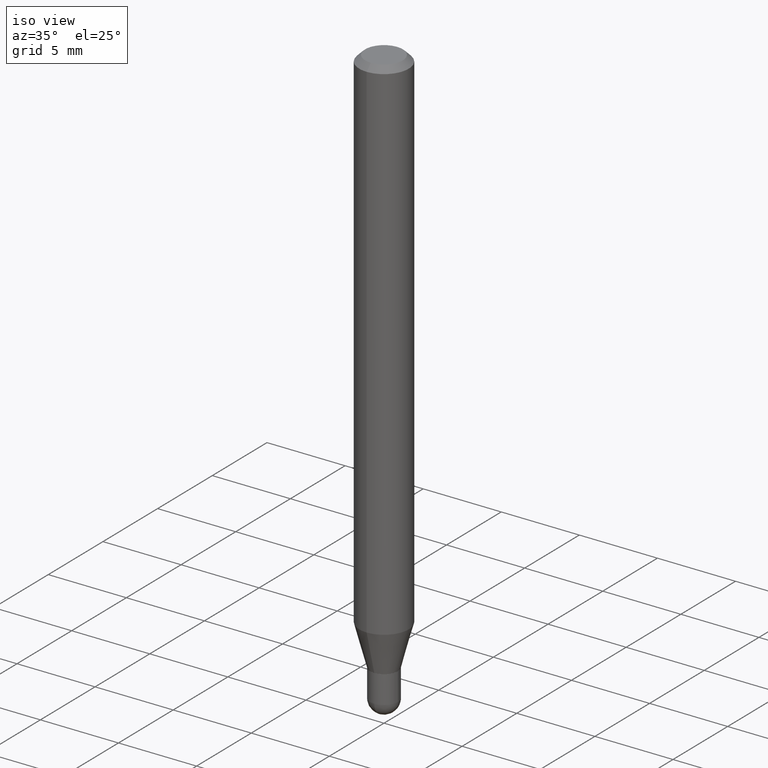
[diagram: clean part render]
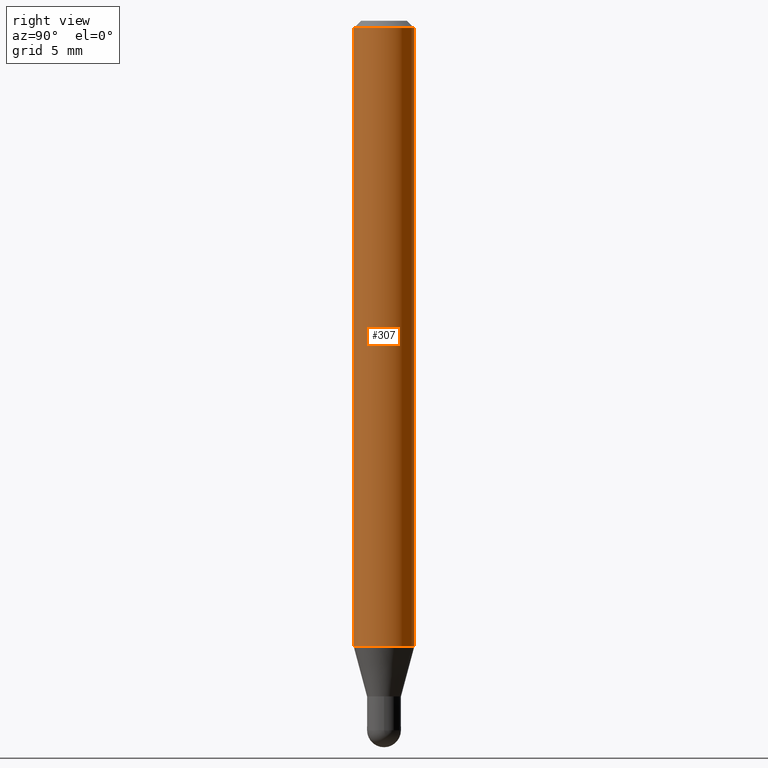
[diagram: tour spotlight — one face highlighted and labeled with its STEP entity id]
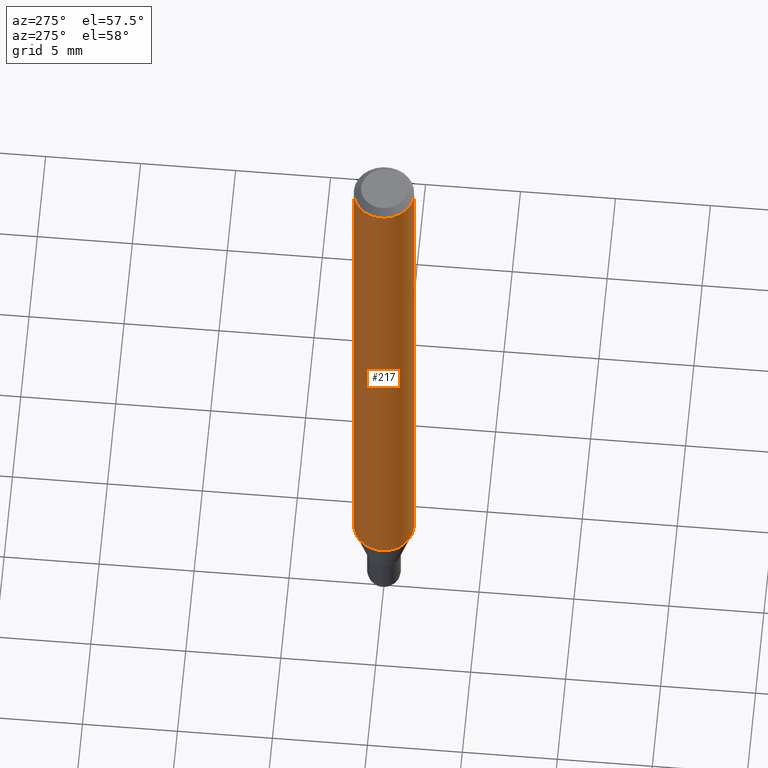
[diagram: tour spotlight — one face highlighted and labeled with its STEP entity id]
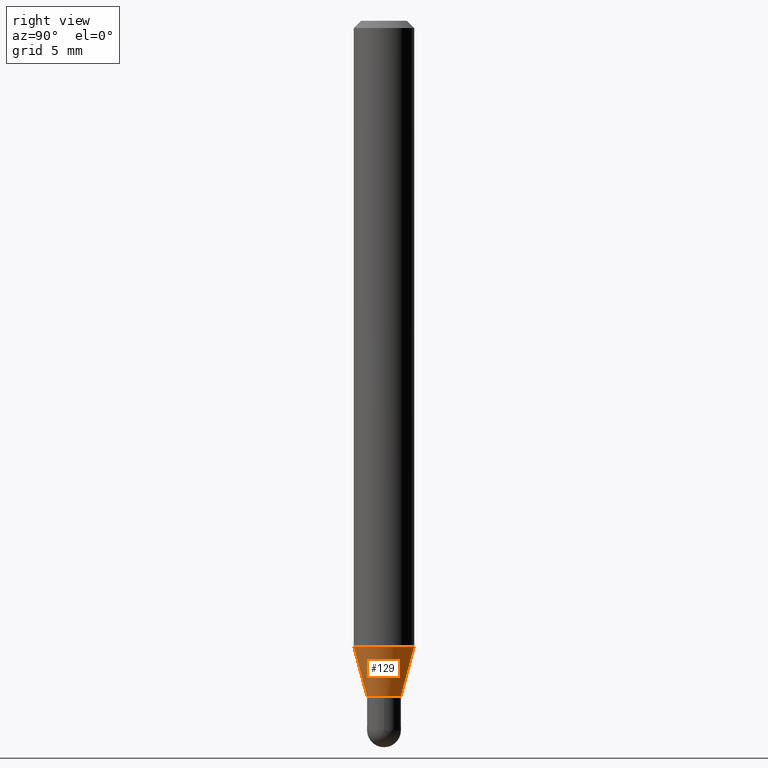
[diagram: tour spotlight — one face highlighted and labeled with its STEP entity id]
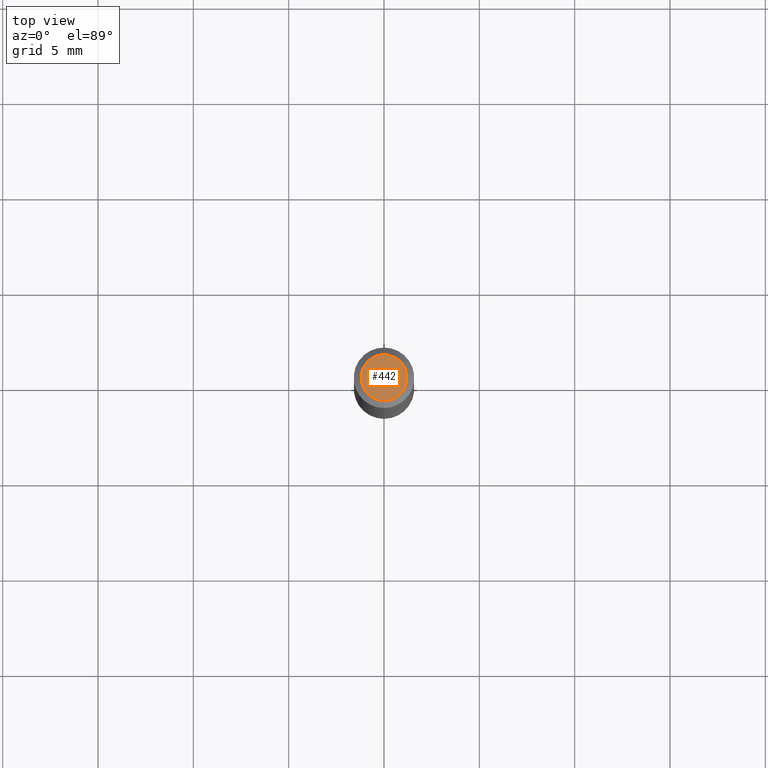
[diagram: tour spotlight — one face highlighted and labeled with its STEP entity id]
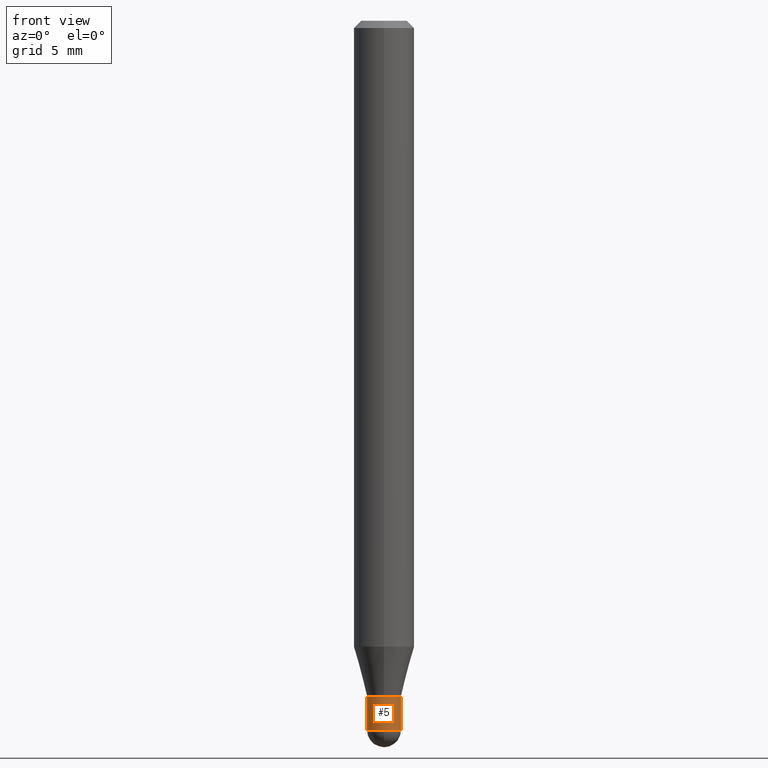
[diagram: tour spotlight — one face highlighted and labeled with its STEP entity id]
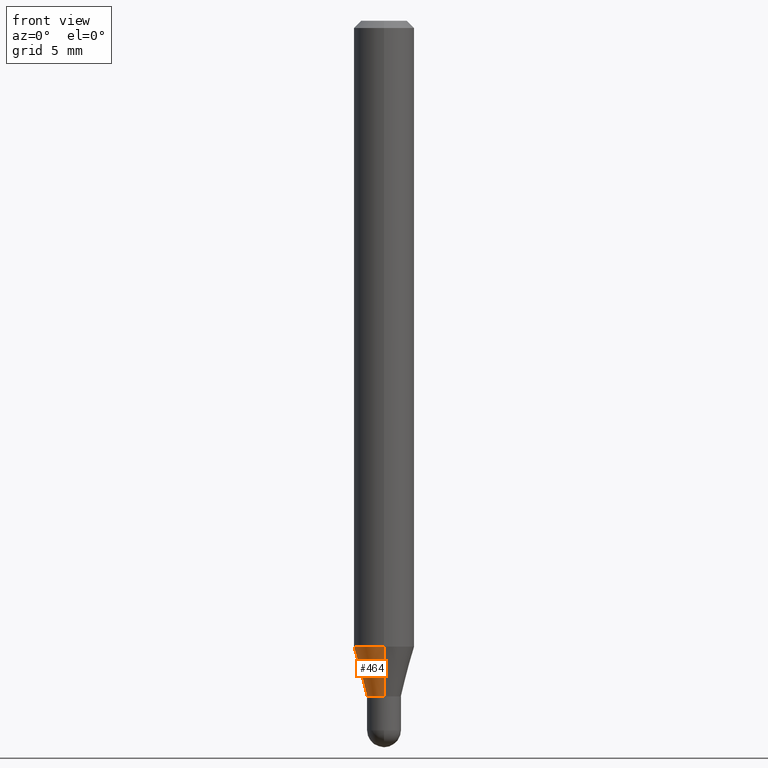
[diagram: tour spotlight — one face highlighted and labeled with its STEP entity id]
A machine part: a face-by-face anatomy tour. The part has 17 B-rep faces; the first image is the clean iso view, then the 6 largest visible faces are spotlighted one at a time (largest first), each with its STEP entity span.

Face 1 — right view, entity #307. In plain terms, the highlighted cylindrical surface (edge-blend (fillet) strip) has radius 1.5875 mm, axis along (-0, 0, 1).
Definition (entity closure, byte-faithful):
#7 = EDGE_CURVE ( 'NONE', #356, #306, #235, .T. ) ;
#18 = ORIENTED_EDGE ( 'NONE', *, *, #346, .F. ) ;
#39 = CARTESIAN_POINT ( 'NONE',  ( 0.000000000000000000, 0.000000000000000000, 0.000000000000000000 ) ) ;
#45 = DIRECTION ( 'NONE',  ( -6.982962677686265922E-15, -1.000000000000000000, 3.483106191921935554E-15 ) ) ;
#89 = DIRECTION ( 'NONE',  ( -2.445400408763161075E-29, 3.491579287844353916E-15, 1.000000000000000000 ) ) ;
#118 = DIRECTION ( 'NONE',  ( -2.445400408763160794E-29, 3.491579287844353916E-15, 1.000000000000000000 ) ) ;
#121 = CARTESIAN_POINT ( 'NONE',  ( 4.440892098500938748E-16, 0.06249999999999544809, -1.292368602791860166 ) ) ;
#124 = CARTESIAN_POINT ( 'NONE',  ( 3.160358709539889409E-29, -4.512407445768404913E-15, -1.292368602791859944 ) ) ;
#139 = CIRCLE ( 'NONE', #410, 0.06250000000000000000 ) ;
#149 = AXIS2_PLACEMENT_3D ( 'NONE', #39, #331, #439 ) ;
#154 = LINE ( 'NONE', #466, #322 ) ;
#176 = DIRECTION ( 'NONE',  ( -2.445400408763161075E-29, 3.491579287844353916E-15, 1.000000000000000000 ) ) ;
#184 = EDGE_CURVE ( 'NONE', #304, #212, #154, .T. ) ;
#198 = ORIENTED_EDGE ( 'NONE', *, *, #184, .T. ) ;
#207 = CARTESIAN_POINT ( 'NONE',  ( -4.364351673553602629E-16, -0.06250000000000455191, -1.292368602791859722 ) ) ;
#212 = VERTEX_POINT ( 'NONE', #337 ) ;
#220 = CIRCLE ( 'NONE', #300, 0.06250000000000000000 ) ;
#235 = LINE ( 'NONE', #506, #353 ) ;
#241 = DIRECTION ( 'NONE',  ( -6.982962677686265922E-15, -1.000000000000000000, 4.370956789862821150E-15 ) ) ;
#254 = CARTESIAN_POINT ( 'NONE',  ( -4.364351673553912750E-16, -0.06250000000000005551, -0.01499999999999984852 ) ) ;
#285 = ORIENTED_EDGE ( 'NONE', *, *, #7, .F. ) ;
#298 = EDGE_LOOP ( 'NONE', ( #350, #198, #18, #285 ) ) ;
#300 = AXIS2_PLACEMENT_3D ( 'NONE', #431, #176, #45 ) ;
#304 = VERTEX_POINT ( 'NONE', #121 ) ;
#306 = VERTEX_POINT ( 'NONE', #254 ) ;
#307 = ADVANCED_FACE ( 'NONE', ( #478 ), #468, .T. ) ;
#316 = DIRECTION ( 'NONE',  ( -2.445400408763160794E-29, 3.491579287844353916E-15, 1.000000000000000000 ) ) ;
#322 = VECTOR ( 'NONE', #118, 39.37007874015748143 ) ;
#331 = DIRECTION ( 'NONE',  ( -2.445400408763161075E-29, 3.491579287844353916E-15, 1.000000000000000000 ) ) ;
#337 = CARTESIAN_POINT ( 'NONE',  ( 4.440892098500943678E-16, 0.06249999999999995143, -0.01500000000000028394 ) ) ;
#346 = EDGE_CURVE ( 'NONE', #306, #212, #220, .T. ) ;
#350 = ORIENTED_EDGE ( 'NONE', *, *, #363, .T. ) ;
#353 = VECTOR ( 'NONE', #316, 39.37007874015748143 ) ;
#356 = VERTEX_POINT ( 'NONE', #207 ) ;
#363 = EDGE_CURVE ( 'NONE', #356, #304, #139, .T. ) ;
#410 = AXIS2_PLACEMENT_3D ( 'NONE', #124, #89, #241 ) ;
#431 = CARTESIAN_POINT ( 'NONE',  ( 3.668100613144757937E-31, -5.237368931766553628E-17, -0.01500000000000006710 ) ) ;
#439 = DIRECTION ( 'NONE',  ( -6.982962677686265922E-15, -1.000000000000000000, 3.491579287844353916E-15 ) ) ;
#466 = CARTESIAN_POINT ( 'NONE',  ( 4.440892098500625669E-16, 0.06250000000000000000, -2.182237054902721198E-16 ) ) ;
#468 = CYLINDRICAL_SURFACE ( 'NONE', #149, 0.06250000000000000000 ) ;
#478 = FACE_OUTER_BOUND ( 'NONE', #298, .T. ) ;
#506 = CARTESIAN_POINT ( 'NONE',  ( -4.364351673553916201E-16, -0.06250000000000000000, 2.182237054902721198E-16 ) ) ;

Face 2 — auxiliary view, entity #217. In plain terms, the highlighted cylindrical surface (edge-blend (fillet) strip) has radius 1.5875 mm, axis along (-0, 0, 1).
Definition (entity closure, byte-faithful):
#4 = DIRECTION ( 'NONE',  ( -2.445400408763161075E-29, 3.491579287844353916E-15, 1.000000000000000000 ) ) ;
#7 = EDGE_CURVE ( 'NONE', #356, #306, #235, .T. ) ;
#17 = DIRECTION ( 'NONE',  ( -2.445400408763161075E-29, 3.491579287844353916E-15, 1.000000000000000000 ) ) ;
#22 = EDGE_CURVE ( 'NONE', #304, #356, #132, .T. ) ;
#34 = ORIENTED_EDGE ( 'NONE', *, *, #184, .F. ) ;
#44 = DIRECTION ( 'NONE',  ( -6.982962677686265922E-15, -1.000000000000000000, 3.483106191921935554E-15 ) ) ;
#67 = ORIENTED_EDGE ( 'NONE', *, *, #113, .F. ) ;
#94 = CARTESIAN_POINT ( 'NONE',  ( 0.000000000000000000, 0.000000000000000000, 0.000000000000000000 ) ) ;
#113 = EDGE_CURVE ( 'NONE', #212, #306, #210, .T. ) ;
#118 = DIRECTION ( 'NONE',  ( -2.445400408763160794E-29, 3.491579287844353916E-15, 1.000000000000000000 ) ) ;
#121 = CARTESIAN_POINT ( 'NONE',  ( 4.440892098500938748E-16, 0.06249999999999544809, -1.292368602791860166 ) ) ;
#126 = CARTESIAN_POINT ( 'NONE',  ( 3.160358709539889409E-29, -4.512407445768404913E-15, -1.292368602791859944 ) ) ;
#132 = CIRCLE ( 'NONE', #138, 0.06250000000000000000 ) ;
#138 = AXIS2_PLACEMENT_3D ( 'NONE', #126, #288, #204 ) ;
#154 = LINE ( 'NONE', #466, #322 ) ;
#184 = EDGE_CURVE ( 'NONE', #304, #212, #154, .T. ) ;
#199 = EDGE_LOOP ( 'NONE', ( #34, #490, #302, #67 ) ) ;
#204 = DIRECTION ( 'NONE',  ( -6.982962677686265922E-15, -1.000000000000000000, 4.370956789862821150E-15 ) ) ;
#207 = CARTESIAN_POINT ( 'NONE',  ( -4.364351673553602629E-16, -0.06250000000000455191, -1.292368602791859722 ) ) ;
#210 = CIRCLE ( 'NONE', #491, 0.06250000000000000000 ) ;
#212 = VERTEX_POINT ( 'NONE', #337 ) ;
#217 = ADVANCED_FACE ( 'NONE', ( #287 ), #395, .T. ) ;
#223 = CARTESIAN_POINT ( 'NONE',  ( 3.668100613144757937E-31, -5.237368931766553628E-17, -0.01500000000000006710 ) ) ;
#235 = LINE ( 'NONE', #506, #353 ) ;
#254 = CARTESIAN_POINT ( 'NONE',  ( -4.364351673553912750E-16, -0.06250000000000005551, -0.01499999999999984852 ) ) ;
#283 = AXIS2_PLACEMENT_3D ( 'NONE', #94, #4, #400 ) ;
#287 = FACE_OUTER_BOUND ( 'NONE', #199, .T. ) ;
#288 = DIRECTION ( 'NONE',  ( -2.445400408763161075E-29, 3.491579287844353916E-15, 1.000000000000000000 ) ) ;
#302 = ORIENTED_EDGE ( 'NONE', *, *, #7, .T. ) ;
#304 = VERTEX_POINT ( 'NONE', #121 ) ;
#306 = VERTEX_POINT ( 'NONE', #254 ) ;
#316 = DIRECTION ( 'NONE',  ( -2.445400408763160794E-29, 3.491579287844353916E-15, 1.000000000000000000 ) ) ;
#322 = VECTOR ( 'NONE', #118, 39.37007874015748143 ) ;
#337 = CARTESIAN_POINT ( 'NONE',  ( 4.440892098500943678E-16, 0.06249999999999995143, -0.01500000000000028394 ) ) ;
#353 = VECTOR ( 'NONE', #316, 39.37007874015748143 ) ;
#356 = VERTEX_POINT ( 'NONE', #207 ) ;
#395 = CYLINDRICAL_SURFACE ( 'NONE', #283, 0.06250000000000000000 ) ;
#400 = DIRECTION ( 'NONE',  ( -6.982962677686265922E-15, -1.000000000000000000, 3.491579287844353916E-15 ) ) ;
#466 = CARTESIAN_POINT ( 'NONE',  ( 4.440892098500625669E-16, 0.06250000000000000000, -2.182237054902721198E-16 ) ) ;
#490 = ORIENTED_EDGE ( 'NONE', *, *, #22, .T. ) ;
#491 = AXIS2_PLACEMENT_3D ( 'NONE', #223, #17, #44 ) ;
#506 = CARTESIAN_POINT ( 'NONE',  ( -4.364351673553916201E-16, -0.06250000000000000000, 2.182237054902721198E-16 ) ) ;

Face 3 — right view, entity #129. In plain terms, the highlighted conical surface has half-angle 15 deg.
Definition (entity closure, byte-faithful):
#12 = DIRECTION ( 'NONE',  ( -6.982962677686266711E-15, -1.000000000000000000, 0.000000000000000000 ) ) ;
#27 = CARTESIAN_POINT ( 'NONE',  ( 3.411333570224609450E-29, -4.870753106542874617E-15, -1.395000000000000018 ) ) ;
#28 = CARTESIAN_POINT ( 'NONE',  ( 3.411333570224609450E-29, -4.870753106542874617E-15, -1.395000000000000018 ) ) ;
#43 = EDGE_CURVE ( 'NONE', #150, #304, #245, .T. ) ;
#51 = CIRCLE ( 'NONE', #201, 0.03500000000000019762 ) ;
#59 = DIRECTION ( 'NONE',  ( -1.807323732225378654E-15, -0.2588190451025251249, 0.9659258262890670910 ) ) ;
#61 = ORIENTED_EDGE ( 'NONE', *, *, #417, .F. ) ;
#64 = CARTESIAN_POINT ( 'NONE',  ( -2.444036937189865873E-16, -0.03500000000000506872, -1.395000000000000018 ) ) ;
#76 = DIRECTION ( 'NONE',  ( -2.445400408763161075E-29, 3.491579287844353916E-15, 1.000000000000000000 ) ) ;
#81 = EDGE_CURVE ( 'NONE', #109, #150, #51, .T. ) ;
#89 = DIRECTION ( 'NONE',  ( -2.445400408763161075E-29, 3.491579287844353916E-15, 1.000000000000000000 ) ) ;
#102 = ORIENTED_EDGE ( 'NONE', *, *, #43, .T. ) ;
#105 = VECTOR ( 'NONE', #59, 39.37007874015748854 ) ;
#109 = VERTEX_POINT ( 'NONE', #64 ) ;
#116 = CARTESIAN_POINT ( 'NONE',  ( 3.463895836830824283E-16, 0.03499999999999532652, -1.395000000000000018 ) ) ;
#121 = CARTESIAN_POINT ( 'NONE',  ( 4.440892098500938748E-16, 0.06249999999999544809, -1.292368602791860166 ) ) ;
#124 = CARTESIAN_POINT ( 'NONE',  ( 3.160358709539889409E-29, -4.512407445768404913E-15, -1.292368602791859944 ) ) ;
#129 = ADVANCED_FACE ( 'NONE', ( #289 ), #273, .T. ) ;
#139 = CIRCLE ( 'NONE', #410, 0.06250000000000000000 ) ;
#150 = VERTEX_POINT ( 'NONE', #116 ) ;
#201 = AXIS2_PLACEMENT_3D ( 'NONE', #28, #76, #12 ) ;
#207 = CARTESIAN_POINT ( 'NONE',  ( -4.364351673553602629E-16, -0.06250000000000455191, -1.292368602791859722 ) ) ;
#224 = ORIENTED_EDGE ( 'NONE', *, *, #81, .T. ) ;
#232 = DIRECTION ( 'NONE',  ( 1.839019923739649619E-15, 0.2588190451025318972, 0.9659258262890653146 ) ) ;
#241 = DIRECTION ( 'NONE',  ( -6.982962677686265922E-15, -1.000000000000000000, 4.370956789862821150E-15 ) ) ;
#245 = LINE ( 'NONE', #279, #263 ) ;
#258 = LINE ( 'NONE', #301, #105 ) ;
#263 = VECTOR ( 'NONE', #232, 39.37007874015748143 ) ;
#273 = CONICAL_SURFACE ( 'NONE', #429, 0.03500000000000019762, 0.2617993877991574569 ) ;
#279 = CARTESIAN_POINT ( 'NONE',  ( 2.486899575160705875E-16, 0.03499999999999532652, -1.395000000000000018 ) ) ;
#289 = FACE_OUTER_BOUND ( 'NONE', #326, .T. ) ;
#301 = CARTESIAN_POINT ( 'NONE',  ( -2.444036937189865873E-16, -0.03500000000000506872, -1.395000000000000018 ) ) ;
#304 = VERTEX_POINT ( 'NONE', #121 ) ;
#326 = EDGE_LOOP ( 'NONE', ( #224, #102, #459, #61 ) ) ;
#356 = VERTEX_POINT ( 'NONE', #207 ) ;
#363 = EDGE_CURVE ( 'NONE', #356, #304, #139, .T. ) ;
#410 = AXIS2_PLACEMENT_3D ( 'NONE', #124, #89, #241 ) ;
#417 = EDGE_CURVE ( 'NONE', #109, #356, #258, .T. ) ;
#429 = AXIS2_PLACEMENT_3D ( 'NONE', #27, #450, #463 ) ;
#450 = DIRECTION ( 'NONE',  ( -2.445400408763161075E-29, 3.491579287844353916E-15, 1.000000000000000000 ) ) ;
#459 = ORIENTED_EDGE ( 'NONE', *, *, #363, .F. ) ;
#463 = DIRECTION ( 'NONE',  ( -6.982962677686266711E-15, -1.000000000000000000, 0.000000000000000000 ) ) ;

Face 4 — top view, entity #442. In plain terms, the highlighted planar face has unit normal (0, -0, -1).
Definition (entity closure, byte-faithful):
#41 = AXIS2_PLACEMENT_3D ( 'NONE', #503, #162, #465 ) ;
#69 = EDGE_CURVE ( 'NONE', #146, #226, #236, .T. ) ;
#92 = CARTESIAN_POINT ( 'NONE',  ( 1.601629217107517250E-45, -2.286830157228695507E-31, -6.549558147483881660E-17 ) ) ;
#100 = FACE_OUTER_BOUND ( 'NONE', #372, .T. ) ;
#101 = DIRECTION ( 'NONE',  ( 2.445400408763160794E-29, -3.491579287844353916E-15, -1.000000000000000000 ) ) ;
#146 = VERTEX_POINT ( 'NONE', #387 ) ;
#162 = DIRECTION ( 'NONE',  ( -2.445400408763161075E-29, 3.491579287844353916E-15, 1.000000000000000000 ) ) ;
#182 = DIRECTION ( 'NONE',  ( -2.445400408763161075E-29, 3.491579287844353916E-15, 1.000000000000000000 ) ) ;
#214 = CARTESIAN_POINT ( 'NONE',  ( -3.773273898774340269E-16, -0.04749999999999999362, 1.003544346977680073E-16 ) ) ;
#226 = VERTEX_POINT ( 'NONE', #214 ) ;
#236 = CIRCLE ( 'NONE', #41, 0.04749999999999999362 ) ;
#293 = AXIS2_PLACEMENT_3D ( 'NONE', #444, #101, #409 ) ;
#336 = PLANE ( 'NONE',  #293 ) ;
#359 = ORIENTED_EDGE ( 'NONE', *, *, #69, .T. ) ;
#372 = EDGE_LOOP ( 'NONE', ( #359, #414 ) ) ;
#382 = EDGE_CURVE ( 'NONE', #226, #146, #486, .T. ) ;
#387 = CARTESIAN_POINT ( 'NONE',  ( 3.840629472727447874E-16, 0.04749999999999999362, -2.313455976474456528E-16 ) ) ;
#409 = DIRECTION ( 'NONE',  ( 6.982962677686265922E-15, 1.000000000000000000, -3.491579287844353916E-15 ) ) ;
#414 = ORIENTED_EDGE ( 'NONE', *, *, #382, .T. ) ;
#430 = AXIS2_PLACEMENT_3D ( 'NONE', #92, #182, #447 ) ;
#442 = ADVANCED_FACE ( 'NONE', ( #100 ), #336, .F. ) ;
#444 = CARTESIAN_POINT ( 'NONE',  ( 3.316907271900976096E-16, 0.04749999999999999362, -1.985978069100262013E-16 ) ) ;
#447 = DIRECTION ( 'NONE',  ( -6.982962677686266711E-15, -1.000000000000000000, 3.491579287844354705E-15 ) ) ;
#465 = DIRECTION ( 'NONE',  ( -6.982962677686266711E-15, -1.000000000000000000, 3.491579287844354705E-15 ) ) ;
#486 = CIRCLE ( 'NONE', #430, 0.04749999999999999362 ) ;
#503 = CARTESIAN_POINT ( 'NONE',  ( 1.601629217107517250E-45, -2.286830157228695507E-31, -6.549558147483881660E-17 ) ) ;

Face 5 — front view, entity #5. In plain terms, the highlighted cylindrical surface (edge-blend (fillet) strip) has radius 0.889 mm, axis along (-0, 0, 1).
Definition (entity closure, byte-faithful):
#5 = ADVANCED_FACE ( 'NONE', ( #159 ), #467, .T. ) ;
#11 = CIRCLE ( 'NONE', #445, 0.03500000000000000333 ) ;
#24 = DIRECTION ( 'NONE',  ( -2.445468806185136597E-29, 3.491481338843145583E-15, 1.000000000000000000 ) ) ;
#42 = VERTEX_POINT ( 'NONE', #85 ) ;
#57 = VERTEX_POINT ( 'NONE', #130 ) ;
#70 = ORIENTED_EDGE ( 'NONE', *, *, #426, .T. ) ;
#80 = DIRECTION ( 'NONE',  ( -2.445468806185136597E-29, 3.491481338843145583E-15, 1.000000000000000000 ) ) ;
#82 = DIRECTION ( 'NONE',  ( 1.000000000000000000, -6.982962677686265922E-15, 4.876176775795936353E-29 ) ) ;
#85 = CARTESIAN_POINT ( 'NONE',  ( -0.03500000000000000333, -4.744128357029662925E-15, -1.395000000000000018 ) ) ;
#90 = CARTESIAN_POINT ( 'NONE',  ( -0.03500000000000000333, 2.486899575160350887E-16, -1.721627281589217108E-30 ) ) ;
#98 = CIRCLE ( 'NONE', #112, 0.03500000000000000333 ) ;
#104 = DIRECTION ( 'NONE',  ( -2.445468806185136877E-29, 3.491481338843145188E-15, 1.000000000000000000 ) ) ;
#108 = ORIENTED_EDGE ( 'NONE', *, *, #408, .T. ) ;
#112 = AXIS2_PLACEMENT_3D ( 'NONE', #115, #24, #200 ) ;
#115 = CARTESIAN_POINT ( 'NONE',  ( 3.582611801061224486E-29, -5.115020161405207405E-15, -1.464999999999999858 ) ) ;
#117 = EDGE_LOOP ( 'NONE', ( #240, #267, #70, #108, #384 ) ) ;
#125 = EDGE_CURVE ( 'NONE', #57, #42, #479, .T. ) ;
#130 = CARTESIAN_POINT ( 'NONE',  ( -0.03500000000000000333, -4.744128357029662925E-15, -1.464999999999999858 ) ) ;
#140 = CARTESIAN_POINT ( 'NONE',  ( 0.03500000000000000333, -2.444036937190193250E-16, 1.706661871528577808E-30 ) ) ;
#159 = FACE_OUTER_BOUND ( 'NONE', #117, .T. ) ;
#171 = CARTESIAN_POINT ( 'NONE',  ( 0.000000000000000000, 0.000000000000000000, 0.000000000000000000 ) ) ;
#185 = DIRECTION ( 'NONE',  ( 1.000000000000000000, -6.982962677686276966E-15, 0.000000000000000000 ) ) ;
#195 = VECTOR ( 'NONE', #253, 39.37007874015748143 ) ;
#200 = DIRECTION ( 'NONE',  ( 1.000000000000000000, -6.982962677686276966E-15, 0.000000000000000000 ) ) ;
#206 = VERTEX_POINT ( 'NONE', #469 ) ;
#240 = ORIENTED_EDGE ( 'NONE', *, *, #125, .F. ) ;
#246 = DIRECTION ( 'NONE',  ( 1.000000000000000000, -6.982962677686276966E-15, 0.000000000000000000 ) ) ;
#249 = CIRCLE ( 'NONE', #376, 0.03500000000000000333 ) ;
#253 = DIRECTION ( 'NONE',  ( -2.445468806185136877E-29, 3.491481338843145188E-15, 1.000000000000000000 ) ) ;
#266 = DIRECTION ( 'NONE',  ( -2.445468806185136597E-29, 3.491481338843145583E-15, 1.000000000000000000 ) ) ;
#267 = ORIENTED_EDGE ( 'NONE', *, *, #512, .T. ) ;
#272 = VERTEX_POINT ( 'NONE', #501 ) ;
#319 = DIRECTION ( 'NONE',  ( -2.445468806185136597E-29, 3.491481338843145583E-15, 1.000000000000000000 ) ) ;
#323 = VECTOR ( 'NONE', #104, 39.37007874015748143 ) ;
#328 = EDGE_CURVE ( 'NONE', #42, #206, #249, .T. ) ;
#340 = AXIS2_PLACEMENT_3D ( 'NONE', #171, #319, #82 ) ;
#342 = CARTESIAN_POINT ( 'NONE',  ( 3.582611801061224486E-29, -5.115020161405207405E-15, -1.464999999999999858 ) ) ;
#364 = CARTESIAN_POINT ( 'NONE',  ( 3.411428984628265351E-29, -4.870616467686188228E-15, -1.395000000000000018 ) ) ;
#373 = CARTESIAN_POINT ( 'NONE',  ( -2.444036937189835304E-16, -0.03500000000000512423, -1.464999999999999858 ) ) ;
#376 = AXIS2_PLACEMENT_3D ( 'NONE', #364, #80, #246 ) ;
#384 = ORIENTED_EDGE ( 'NONE', *, *, #328, .F. ) ;
#408 = EDGE_CURVE ( 'NONE', #272, #206, #441, .T. ) ;
#425 = VERTEX_POINT ( 'NONE', #373 ) ;
#426 = EDGE_CURVE ( 'NONE', #425, #272, #11, .T. ) ;
#441 = LINE ( 'NONE', #140, #323 ) ;
#445 = AXIS2_PLACEMENT_3D ( 'NONE', #342, #266, #185 ) ;
#467 = CYLINDRICAL_SURFACE ( 'NONE', #340, 0.03500000000000000333 ) ;
#469 = CARTESIAN_POINT ( 'NONE',  ( 0.03500000000000000333, -5.115020161405208194E-15, -1.395000000000000018 ) ) ;
#479 = LINE ( 'NONE', #90, #195 ) ;
#501 = CARTESIAN_POINT ( 'NONE',  ( 0.03500000000000000333, -5.237222008264717388E-15, -1.464999999999999858 ) ) ;
#512 = EDGE_CURVE ( 'NONE', #57, #425, #98, .T. ) ;

Face 6 — front view, entity #464. In plain terms, the highlighted conical surface has half-angle 15 deg.
Definition (entity closure, byte-faithful):
#9 = DIRECTION ( 'NONE',  ( -6.982962677686266711E-15, -1.000000000000000000, 0.000000000000000000 ) ) ;
#22 = EDGE_CURVE ( 'NONE', #304, #356, #132, .T. ) ;
#43 = EDGE_CURVE ( 'NONE', #150, #304, #245, .T. ) ;
#59 = DIRECTION ( 'NONE',  ( -1.807323732225378654E-15, -0.2588190451025251249, 0.9659258262890670910 ) ) ;
#60 = AXIS2_PLACEMENT_3D ( 'NONE', #371, #188, #9 ) ;
#64 = CARTESIAN_POINT ( 'NONE',  ( -2.444036937189865873E-16, -0.03500000000000506872, -1.395000000000000018 ) ) ;
#105 = VECTOR ( 'NONE', #59, 39.37007874015748854 ) ;
#109 = VERTEX_POINT ( 'NONE', #64 ) ;
#116 = CARTESIAN_POINT ( 'NONE',  ( 3.463895836830824283E-16, 0.03499999999999532652, -1.395000000000000018 ) ) ;
#121 = CARTESIAN_POINT ( 'NONE',  ( 4.440892098500938748E-16, 0.06249999999999544809, -1.292368602791860166 ) ) ;
#126 = CARTESIAN_POINT ( 'NONE',  ( 3.160358709539889409E-29, -4.512407445768404913E-15, -1.292368602791859944 ) ) ;
#127 = DIRECTION ( 'NONE',  ( -2.445400408763161075E-29, 3.491579287844353916E-15, 1.000000000000000000 ) ) ;
#132 = CIRCLE ( 'NONE', #138, 0.06250000000000000000 ) ;
#138 = AXIS2_PLACEMENT_3D ( 'NONE', #126, #288, #204 ) ;
#150 = VERTEX_POINT ( 'NONE', #116 ) ;
#167 = CONICAL_SURFACE ( 'NONE', #60, 0.03500000000000019762, 0.2617993877991574569 ) ;
#188 = DIRECTION ( 'NONE',  ( -2.445400408763161075E-29, 3.491579287844353916E-15, 1.000000000000000000 ) ) ;
#189 = ORIENTED_EDGE ( 'NONE', *, *, #417, .T. ) ;
#196 = EDGE_LOOP ( 'NONE', ( #374, #381, #189, #419 ) ) ;
#204 = DIRECTION ( 'NONE',  ( -6.982962677686265922E-15, -1.000000000000000000, 4.370956789862821150E-15 ) ) ;
#207 = CARTESIAN_POINT ( 'NONE',  ( -4.364351673553602629E-16, -0.06250000000000455191, -1.292368602791859722 ) ) ;
#232 = DIRECTION ( 'NONE',  ( 1.839019923739649619E-15, 0.2588190451025318972, 0.9659258262890653146 ) ) ;
#245 = LINE ( 'NONE', #279, #263 ) ;
#258 = LINE ( 'NONE', #301, #105 ) ;
#263 = VECTOR ( 'NONE', #232, 39.37007874015748143 ) ;
#279 = CARTESIAN_POINT ( 'NONE',  ( 2.486899575160705875E-16, 0.03499999999999532652, -1.395000000000000018 ) ) ;
#288 = DIRECTION ( 'NONE',  ( -2.445400408763161075E-29, 3.491579287844353916E-15, 1.000000000000000000 ) ) ;
#291 = DIRECTION ( 'NONE',  ( -6.982962677686266711E-15, -1.000000000000000000, 0.000000000000000000 ) ) ;
#301 = CARTESIAN_POINT ( 'NONE',  ( -2.444036937189865873E-16, -0.03500000000000506872, -1.395000000000000018 ) ) ;
#304 = VERTEX_POINT ( 'NONE', #121 ) ;
#344 = EDGE_CURVE ( 'NONE', #150, #109, #454, .T. ) ;
#356 = VERTEX_POINT ( 'NONE', #207 ) ;
#371 = CARTESIAN_POINT ( 'NONE',  ( 3.411333570224609450E-29, -4.870753106542874617E-15, -1.395000000000000018 ) ) ;
#374 = ORIENTED_EDGE ( 'NONE', *, *, #43, .F. ) ;
#381 = ORIENTED_EDGE ( 'NONE', *, *, #344, .T. ) ;
#417 = EDGE_CURVE ( 'NONE', #109, #356, #258, .T. ) ;
#419 = ORIENTED_EDGE ( 'NONE', *, *, #22, .F. ) ;
#454 = CIRCLE ( 'NONE', #507, 0.03500000000000019762 ) ;
#464 = ADVANCED_FACE ( 'NONE', ( #485 ), #167, .T. ) ;
#485 = FACE_OUTER_BOUND ( 'NONE', #196, .T. ) ;
#507 = AXIS2_PLACEMENT_3D ( 'NONE', #511, #127, #291 ) ;
#511 = CARTESIAN_POINT ( 'NONE',  ( 3.411333570224609450E-29, -4.870753106542874617E-15, -1.395000000000000018 ) ) ;